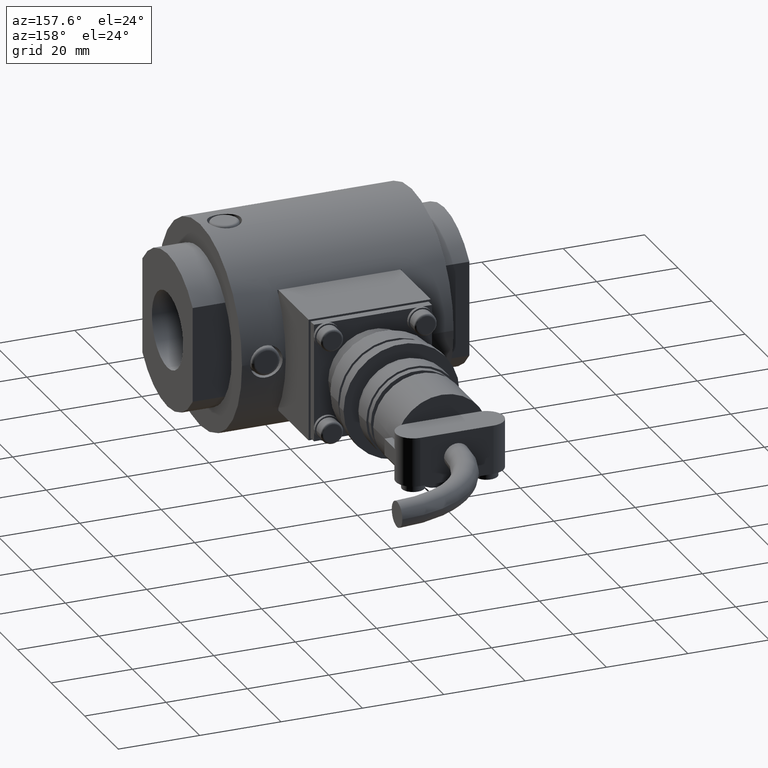
[diagram: clean part render]
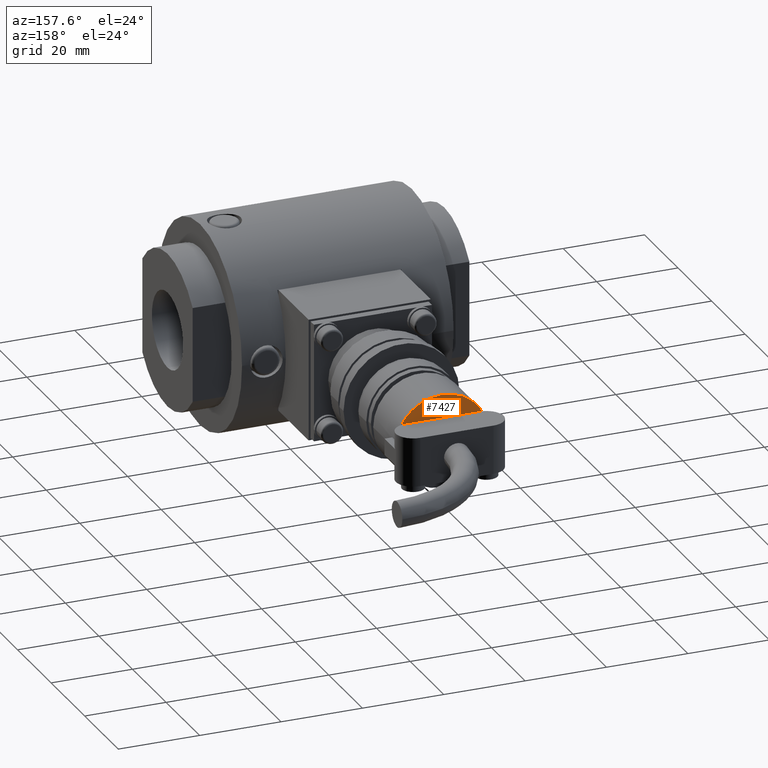
[diagram: same view with one face highlighted and labeled with its STEP entity id]
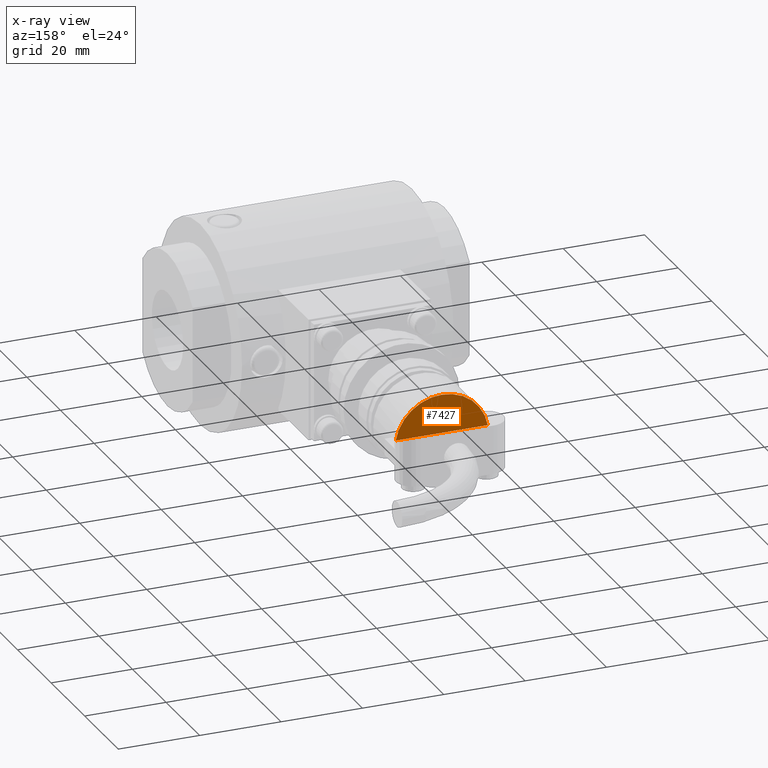
[diagram: x-ray of the same camera — body ghosted, the highlighted face saturated]
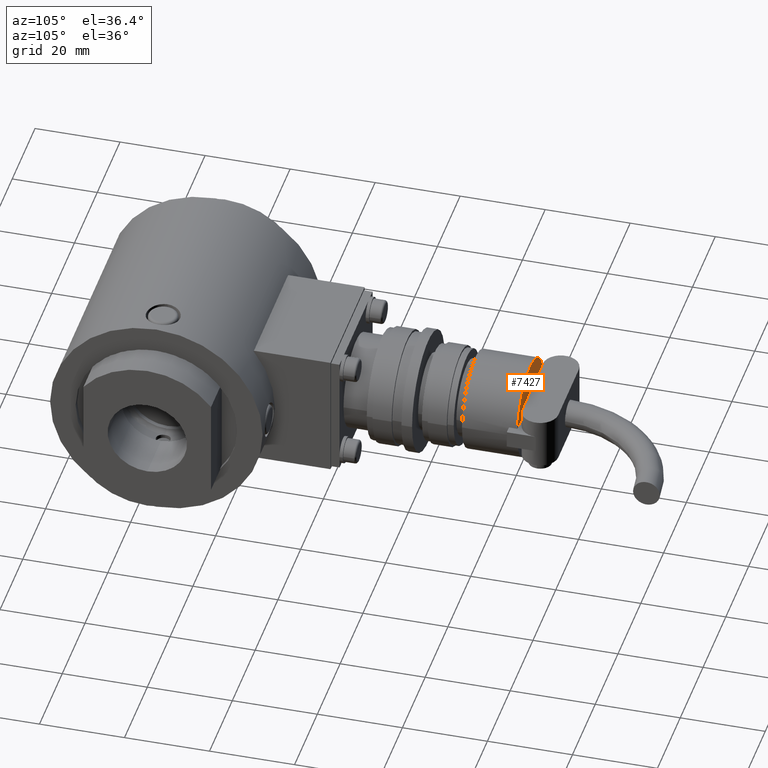
[diagram: same view with one face highlighted and labeled with its STEP entity id]
A machine part, auxiliary view. The second image highlights one B-rep face of the part: STEP entity #7427.
The next image is the same camera in x-ray: the body ghosted, the highlighted face saturated — about 0% of this face is hidden behind the body in this view.
A second angle (auxiliary view) of the same face is appended — the face is thin or edge-on in the first view.
In plain terms, the highlighted planar face has unit normal (0, 1, 0).
Its self-contained STEP definition (entity closure, byte-faithful):
#7370=CARTESIAN_POINT('',(-23.099751652906242,-12.249999999999945,2.0));
#7371=VERTEX_POINT('',#7370);
#7378=CARTESIAN_POINT('',(-0.450248347094044,-12.249999999999941,2.0));
#7379=VERTEX_POINT('',#7378);
#7380=CARTESIAN_POINT('',(-11.775000000000144,-12.249999999999943,0.0));
#7381=DIRECTION('',(0.0,1.0,0.0));
#7382=DIRECTION('',(-1.0,0.0,0.0));
#7383=AXIS2_PLACEMENT_3D('',#7380,#7381,#7382);
#7384=CIRCLE('',#7383,11.499999999999975);
#7385=EDGE_CURVE('',#7371,#7379,#7384,.T.);
#7413=CARTESIAN_POINT('',(-17.525000000000119,-12.249999999999943,0.0));
#7414=DIRECTION('',(0.0,-1.0,0.0));
#7415=DIRECTION('',(0.0,0.0,-1.0));
#7416=AXIS2_PLACEMENT_3D('',#7413,#7414,#7415);
#7417=PLANE('',#7416);
#7418=CARTESIAN_POINT('',(-0.450248347094044,-12.249999999999941,2.0));
#7419=DIRECTION('',(-1.0,0.0,0.0));
#7420=VECTOR('',#7419,22.649503305812196);
#7421=LINE('',#7418,#7420);
#7422=EDGE_CURVE('',#7379,#7371,#7421,.T.);
#7423=ORIENTED_EDGE('',*,*,#7422,.F.);
#7424=ORIENTED_EDGE('',*,*,#7385,.F.);
#7425=EDGE_LOOP('',(#7423,#7424));
#7426=FACE_OUTER_BOUND('',#7425,.T.);
#7427=ADVANCED_FACE('',(#7426),#7417,.T.);